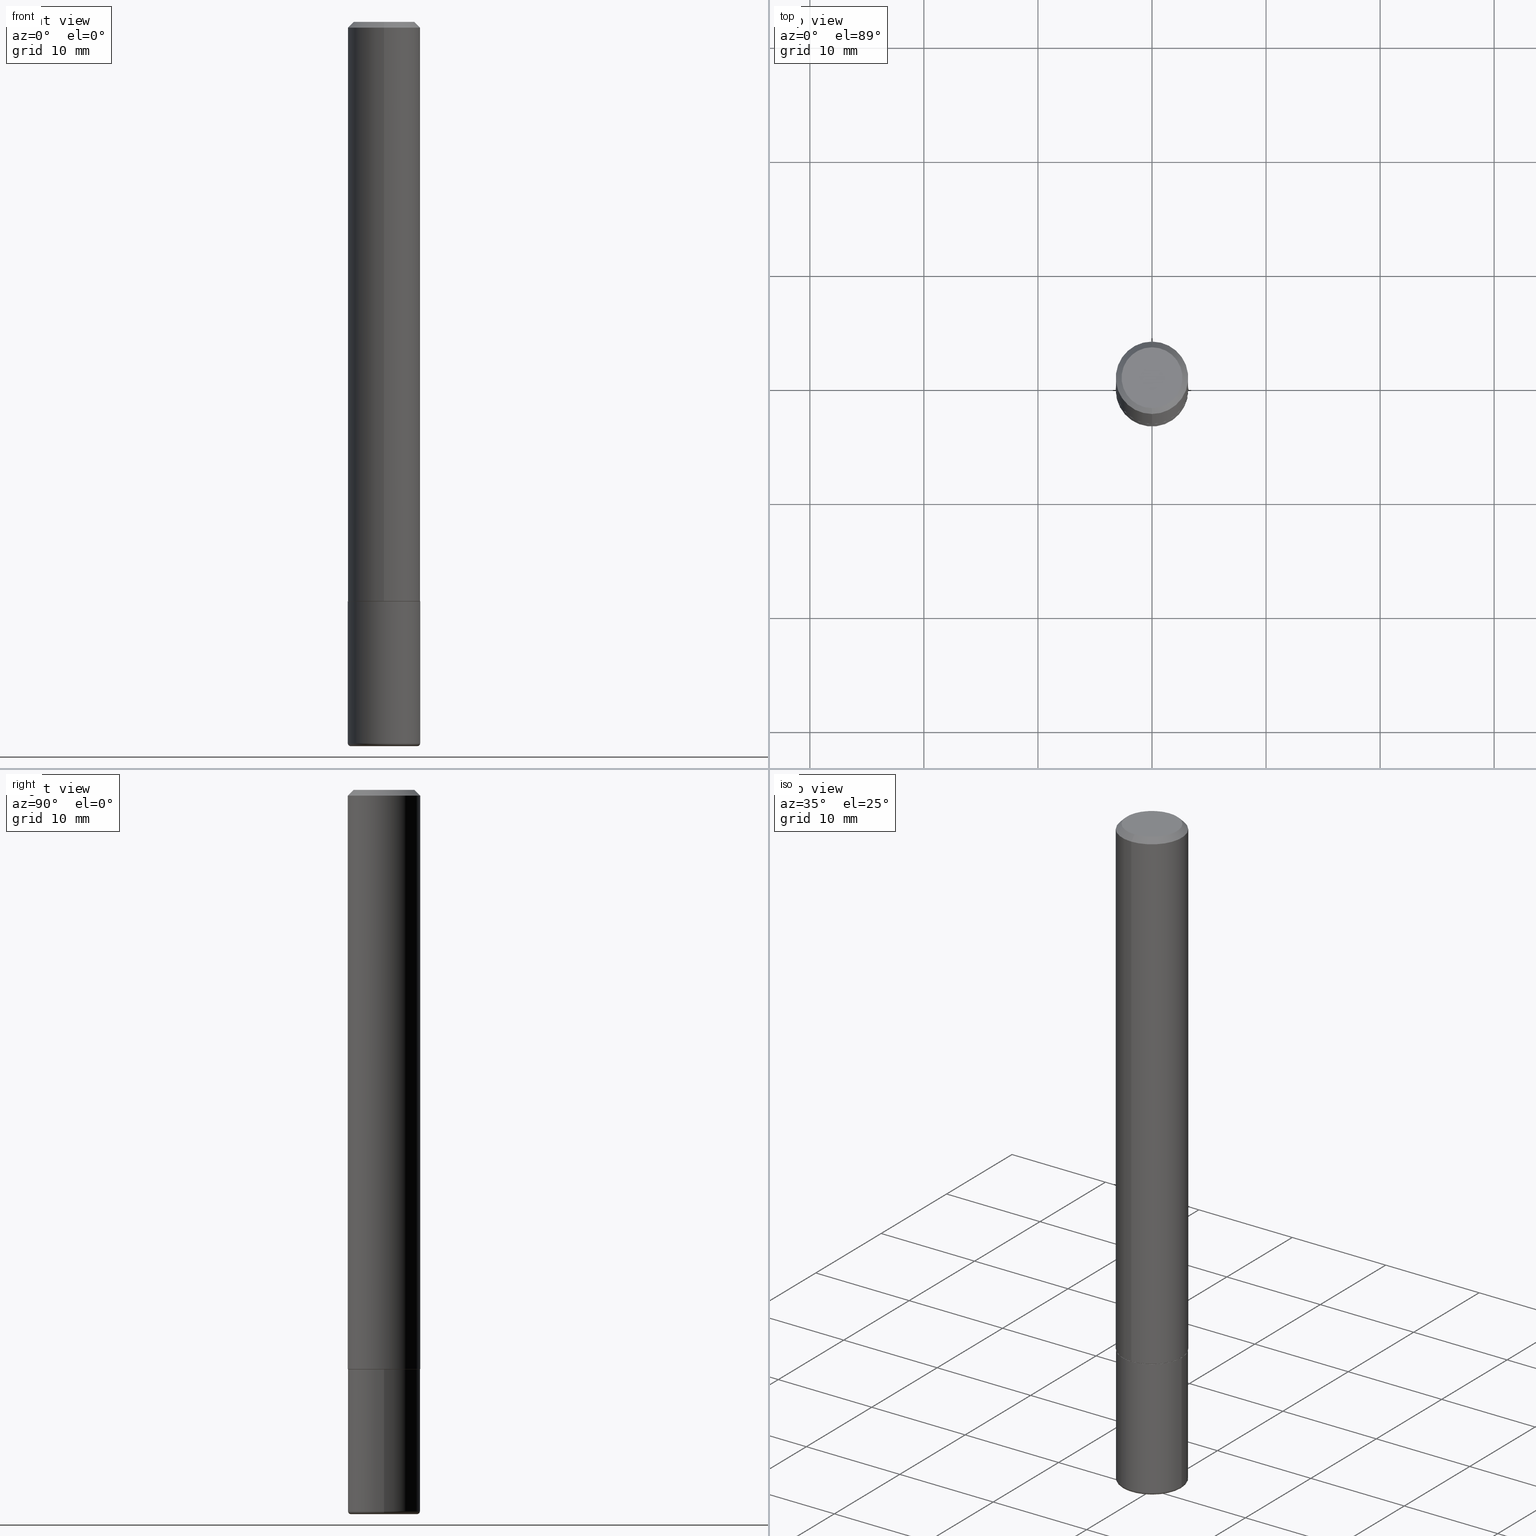
[diagram: canonical four-view strip — front | top / right | iso, engineering-drawing reading convention]
A machine part, canonical four-view strip (front | top / right | iso — engineering-drawing reading convention). The complete STEP part file that produces these views, byte-faithful:
ISO-10303-21;
HEADER;
FILE_DESCRIPTION (( 'STEP AP203' ),
    '1' );
FILE_NAME ('36372.STEP',
    '2024-03-01T16:12:04',
    ( '' ),
    ( '' ),
    'SwSTEP 2.0',
    'SolidWorks 2023',
    '' );
FILE_SCHEMA (( 'CONFIG_CONTROL_DESIGN' ));
ENDSEC;

DATA;
#1 = APPLICATION_PROTOCOL_DEFINITION ( 'international standard', 'config_control_design', 1994, #26 ) ;
#2 = CARTESIAN_POINT ( 'NONE',  ( -0.1250000000000000278, -7.805610114019306483E-15, -2.489999999999999769 ) ) ;
#3 = AXIS2_PLACEMENT_3D ( 'NONE', #227, #401, #109 ) ;
#4 = EDGE_CURVE ( 'NONE', #163, #397, #50, .T. ) ;
#5 = LINE ( 'NONE', #73, #66 ) ;
#6 = DIRECTION ( 'NONE',  ( -2.445468806185136597E-29, 3.491481338843145583E-15, 1.000000000000000000 ) ) ;
#7 = ORIENTED_EDGE ( 'NONE', *, *, #256, .F. ) ;
#8 = DIRECTION ( 'NONE',  ( -6.982962677686265922E-15, -1.000000000000000000, 4.406206441393973340E-15 ) ) ;
#9 = CONICAL_SURFACE ( 'NONE', #134, 0.1239999999999999991, 0.7853981633976704346 ) ;
#10 = CONICAL_SURFACE ( 'NONE', #273, 0.1250000000000000000, 0.7853981633974477239 ) ;
#11 = EDGE_LOOP ( 'NONE', ( #198, #360, #228, #103 ) ) ;
#12 = DIRECTION ( 'NONE',  ( -2.445362441100968354E-29, 3.491633659697599275E-15, 1.000000000000000000 ) ) ;
#13 = EDGE_LOOP ( 'NONE', ( #44, #108, #305, #403 ) ) ;
#14 = ADVANCED_FACE ( 'NONE', ( #331 ), #155, .T. ) ;
#15 = DIRECTION ( 'NONE',  ( -2.445362441100968354E-29, 3.491633659697599275E-15, 1.000000000000000000 ) ) ;
#16 = ORIENTED_EDGE ( 'NONE', *, *, #374, .T. ) ;
#17 = EDGE_LOOP ( 'NONE', ( #254, #263, #83, #165 ) ) ;
#18 = CIRCLE ( 'NONE', #303, 0.1239999999999999991 ) ;
#19 = ADVANCED_FACE ( 'NONE', ( #185 ), #22, .T. ) ;
#20 = CARTESIAN_POINT ( 'NONE',  ( -8.575622497214408537E-16, -0.1250000000000000555, -0.01999999999999959102 ) ) ;
#21 = CARTESIAN_POINT ( 'NONE',  ( 6.113672015462842613E-29, -8.728703347107864943E-15, -2.500000000000000000 ) ) ;
#22 = CYLINDRICAL_SURFACE ( 'NONE', #180, 0.1250000000000000000 ) ;
#23 = EDGE_CURVE ( 'NONE', #42, #232, #393, .T. ) ;
#24 = PERSON_AND_ORGANIZATION_ROLE ( 'classification_officer' ) ;
#25 = CIRCLE ( 'NONE', #233, 0.1050000000000000377 ) ;
#26 = APPLICATION_CONTEXT ( 'configuration controlled 3d designs of mechanical parts and assemblies' ) ;
#27 = CARTESIAN_POINT ( 'NONE',  ( 7.332110811570581229E-16, 0.1050000000000000377, -3.879560998738913242E-16 ) ) ;
#28 = CARTESIAN_POINT ( 'NONE',  ( 0.000000000000000000, 0.000000000000000000, 0.000000000000000000 ) ) ;
#29 = PLANE ( 'NONE',  #156 ) ;
#30 = CIRCLE ( 'NONE', #264, 0.1250000000000002498 ) ;
#31 = SECURITY_CLASSIFICATION ( '', '', #179 ) ;
#32 = EDGE_CURVE ( 'NONE', #33, #362, #373, .T. ) ;
#33 = VERTEX_POINT ( 'NONE', #407 ) ;
#34 = DIRECTION ( 'NONE',  ( 1.000000000000000000, -6.982962677686270655E-15, 0.000000000000000000 ) ) ;
#35 = EDGE_CURVE ( 'NONE', #33, #270, #30, .T. ) ;
#36 = DIRECTION ( 'NONE',  ( -6.982962677686266711E-15, -1.000000000000000000, 3.491481338843145583E-15 ) ) ;
#37 = AXIS2_PLACEMENT_3D ( 'NONE', #299, #167, #8 ) ;
#38 = ORIENTED_EDGE ( 'NONE', *, *, #332, .F. ) ;
#39 = CARTESIAN_POINT ( 'NONE',  ( 0.000000000000000000, 0.000000000000000000, 0.000000000000000000 ) ) ;
#40 = ORIENTED_EDGE ( 'NONE', *, *, #268, .F. ) ;
#41 = DIRECTION ( 'NONE',  ( 6.982962677686265922E-15, 1.000000000000000000, -3.483106191921935554E-15 ) ) ;
#42 = VERTEX_POINT ( 'NONE', #207 ) ;
#43 = DIRECTION ( 'NONE',  ( -2.445362441100968354E-29, 3.491633659697599275E-15, 1.000000000000000000 ) ) ;
#44 = ORIENTED_EDGE ( 'NONE', *, *, #351, .T. ) ;
#45 = CARTESIAN_POINT ( 'NONE',  ( 0.1150000000000000050, -9.496829241653351756E-15, -2.489999999999999769 ) ) ;
#46 = ORIENTED_EDGE ( 'NONE', *, *, #168, .T. ) ;
#47 = COORDINATED_UNIVERSAL_TIME_OFFSET ( 5, 0, .BEHIND. ) ;
#48 = ORIENTED_EDGE ( 'NONE', *, *, #398, .T. ) ;
#49 = PRODUCT_RELATED_PRODUCT_CATEGORY ( 'detail', '', ( #80 ) ) ;
#50 = CIRCLE ( 'NONE', #388, 0.1250000000000000000 ) ;
#51 = CARTESIAN_POINT ( 'NONE',  ( 4.890937612370273194E-29, -6.982962677686291165E-15, -2.000000000000000000 ) ) ;
#52 = VECTOR ( 'NONE', #298, 39.37007874015748854 ) ;
#53 = DIRECTION ( 'NONE',  ( -2.445362441100968354E-29, 3.491633659697599275E-15, 1.000000000000000000 ) ) ;
#54 = EDGE_CURVE ( 'NONE', #201, #397, #145, .T. ) ;
#55 = CARTESIAN_POINT ( 'NONE',  ( -0.1250000000000000000, 8.881784197001252323E-16, -6.148668862818632227E-30 ) ) ;
#56 = CALENDAR_DATE ( 2024, 1, 3 ) ;
#57 = DIRECTION ( 'NONE',  ( -6.982962677686266711E-15, -1.000000000000000000, 3.491633659697599669E-15 ) ) ;
#58 = CLOSED_SHELL ( 'NONE', ( #97, #314, #287, #380, #141, #405, #340, #161 ) ) ;
#59 = AXIS2_PLACEMENT_3D ( 'NONE', #361, #304, #72 ) ;
#60 = FACE_OUTER_BOUND ( 'NONE', #82, .T. ) ;
#61 = APPROVAL_ROLE ( '' ) ;
#62 = DIRECTION ( 'NONE',  ( 1.000000000000000000, -6.982962677686266711E-15, 4.883557194083113462E-29 ) ) ;
#63 = CALENDAR_DATE ( 2024, 1, 3 ) ;
#64 = EDGE_LOOP ( 'NONE', ( #234, #190, #111, #370 ) ) ;
#65 = VECTOR ( 'NONE', #124, 39.37007874015748143 ) ;
#66 = VECTOR ( 'NONE', #402, 39.37007874015748143 ) ;
#67 = DIRECTION ( 'NONE',  ( -2.445362441100968354E-29, 3.491633659697599275E-15, 1.000000000000000000 ) ) ;
#68 = DIRECTION ( 'NONE',  ( 4.937700262164544887E-15, 0.7071067811865446862, -0.7071067811865503483 ) ) ;
#69 = FACE_OUTER_BOUND ( 'NONE', #13, .T. ) ;
#70 = CARTESIAN_POINT ( 'NONE',  ( 4.890724882201936708E-29, -6.983267319395198550E-15, -2.000000000000000000 ) ) ;
#71 = CIRCLE ( 'NONE', #3, 0.1249999999999999861 ) ;
#72 = DIRECTION ( 'NONE',  ( -6.982962677686265133E-15, -1.000000000000000000, 3.491633659697599669E-15 ) ) ;
#73 = CARTESIAN_POINT ( 'NONE',  ( -8.575622497214408537E-16, -0.1250000000000000555, -0.01999999999999959102 ) ) ;
#74 = ORIENTED_EDGE ( 'NONE', *, *, #240, .T. ) ;
#75 = CARTESIAN_POINT ( 'NONE',  ( 6.113672015462842613E-29, -8.728703347107864943E-15, -2.500000000000000000 ) ) ;
#76 = ORIENTED_EDGE ( 'NONE', *, *, #351, .F. ) ;
#77 = CIRCLE ( 'NONE', #317, 0.01000000000000006439 ) ;
#78 = LOCAL_TIME ( 11, 12, 4.000000000000000000, #154 ) ;
#79 = EDGE_LOOP ( 'NONE', ( #74, #337, #169, #40 ) ) ;
#80 = PRODUCT ( '36372', '36372', '', ( #286 ) ) ;
#81 = EDGE_CURVE ( 'NONE', #226, #270, #239, .T. ) ;
#82 = EDGE_LOOP ( 'NONE', ( #160, #301 ) ) ;
#83 = ORIENTED_EDGE ( 'NONE', *, *, #81, .T. ) ;
#84 = FACE_OUTER_BOUND ( 'NONE', #64, .T. ) ;
#85 = APPROVAL_PERSON_ORGANIZATION ( #120, #123, #354 ) ;
#86 = DIRECTION ( 'NONE',  ( -2.445468806185136597E-29, 3.491481338843145583E-15, 1.000000000000000000 ) ) ;
#87 = APPROVAL_DATE_TIME ( #242, #176 ) ;
#88 = DIRECTION ( 'NONE',  ( 1.000000000000000000, -6.982962677686271444E-15, 0.000000000000000000 ) ) ;
#89 = COORDINATED_UNIVERSAL_TIME_OFFSET ( 5, 0, .BEHIND. ) ;
#90 = DIRECTION ( 'NONE',  ( -2.445468806185136877E-29, 3.491481338843145188E-15, 1.000000000000000000 ) ) ;
#91 = PERSON_AND_ORGANIZATION ( #372, #265 ) ;
#92 = LOCAL_TIME ( 11, 12, 4.000000000000000000, #47 ) ;
#93 = PERSON_AND_ORGANIZATION ( #372, #265 ) ;
#94 = ORIENTED_EDGE ( 'NONE', *, *, #152, .F. ) ;
#95 = DATE_AND_TIME ( #63, #166 ) ;
#96 = CARTESIAN_POINT ( 'NONE',  ( 1.043414908584889994E-45, -1.489849747673812213E-31, -4.266913121128647336E-17 ) ) ;
#97 = ADVANCED_FACE ( 'NONE', ( #178 ), #9, .T. ) ;
#98 = DIRECTION ( 'NONE',  ( -2.445362441100968354E-29, 3.491633659697599275E-15, 1.000000000000000000 ) ) ;
#99 = VERTEX_POINT ( 'NONE', #410 ) ;
#100 = FACE_OUTER_BOUND ( 'NONE', #79, .T. ) ;
#101 = DIRECTION ( 'NONE',  ( 2.445362441100968354E-29, -3.491633659697599275E-15, -1.000000000000000000 ) ) ;
#102 = AXIS2_PLACEMENT_3D ( 'NONE', #260, #353, #62 ) ;
#103 = ORIENTED_EDGE ( 'NONE', *, *, #366, .F. ) ;
#104 = CC_DESIGN_PERSON_AND_ORGANIZATION_ASSIGNMENT ( #382, #352, ( #148 ) ) ;
#105 = DIRECTION ( 'NONE',  ( 1.000000000000000000, -6.982962677686287221E-15, 0.000000000000000000 ) ) ;
#106 = VERTEX_POINT ( 'NONE', #20 ) ;
#107 = CARTESIAN_POINT ( 'NONE',  ( 6.113672015462842613E-29, -8.728703347107864943E-15, -2.500000000000000000 ) ) ;
#108 = ORIENTED_EDGE ( 'NONE', *, *, #152, .T. ) ;
#109 = DIRECTION ( 'NONE',  ( 1.000000000000000000, -6.982962677686271444E-15, 0.000000000000000000 ) ) ;
#110 = CC_DESIGN_PERSON_AND_ORGANIZATION_ASSIGNMENT ( #93, #214, ( #148 ) ) ;
#111 = ORIENTED_EDGE ( 'NONE', *, *, #4, .F. ) ;
#112 = DIRECTION ( 'NONE',  ( -2.445468806185136597E-29, 3.491481338843145583E-15, 1.000000000000000000 ) ) ;
#113 = CARTESIAN_POINT ( 'NONE',  ( 0.000000000000000000, 0.000000000000000000, 0.000000000000000000 ) ) ;
#114 = CC_DESIGN_APPROVAL ( #391, ( #148 ) ) ;
#115 = CARTESIAN_POINT ( 'NONE',  ( 4.888279519760836279E-29, -6.979775685735500754E-15, -1.999000000000000110 ) ) ;
#116 = CIRCLE ( 'NONE', #59, 0.1050000000000000377 ) ;
#117 = ADVANCED_FACE ( 'NONE', ( #84 ), #276, .T. ) ;
#118 = APPROVAL_ROLE ( '' ) ;
#119 = DIRECTION ( 'NONE',  ( -2.445468806185136597E-29, 3.491481338843145583E-15, 1.000000000000000000 ) ) ;
#120 = PERSON_AND_ORGANIZATION ( #372, #265 ) ;
#121 = DIRECTION ( 'NONE',  ( -6.982962677686265133E-15, -1.000000000000000000, 4.370956789862812472E-15 ) ) ;
#122 = APPROVAL_DATE_TIME ( #411, #391 ) ;
#123 = APPROVAL ( #251, 'UNSPECIFIED' ) ;
#124 = DIRECTION ( 'NONE',  ( -2.445468806185136877E-29, 3.491481338843145188E-15, 1.000000000000000000 ) ) ;
#125 = CLOSED_SHELL ( 'NONE', ( #117, #249, #192, #19, #14, #412 ) ) ;
#126 =( GEOMETRIC_REPRESENTATION_CONTEXT ( 3 ) GLOBAL_UNCERTAINTY_ASSIGNED_CONTEXT ( ( #257 ) ) GLOBAL_UNIT_ASSIGNED_CONTEXT ( ( #170, #369, #320 ) ) REPRESENTATION_CONTEXT ( 'NONE', 'WORKASPACE' ) );
#127 = PERSON_AND_ORGANIZATION_ROLE ( 'creator' ) ;
#128 = CARTESIAN_POINT ( 'NONE',  ( 8.728703347107837333E-16, 0.1249999999999999306, -0.02000000000000046185 ) ) ;
#129 = AXIS2_PLACEMENT_3D ( 'NONE', #381, #406, #206 ) ;
#130 = VECTOR ( 'NONE', #68, 39.37007874015748143 ) ;
#131 = DIRECTION ( 'NONE',  ( -6.982962677686265922E-15, -1.000000000000000000, 3.483106191921935554E-15 ) ) ;
#132 = EDGE_CURVE ( 'NONE', #106, #362, #375, .T. ) ;
#133 = ORIENTED_EDGE ( 'NONE', *, *, #220, .T. ) ;
#134 = AXIS2_PLACEMENT_3D ( 'NONE', #350, #53, #315 ) ;
#135 = LINE ( 'NONE', #365, #52 ) ;
#136 = AXIS2_PLACEMENT_3D ( 'NONE', #75, #6, #330 ) ;
#137 = ORIENTED_EDGE ( 'NONE', *, *, #23, .T. ) ;
#138 = APPLICATION_CONTEXT ( 'configuration controlled 3d designs of mechanical parts and assemblies' ) ;
#139 = PLANE ( 'NONE',  #389 ) ;
#140 = ORIENTED_EDGE ( 'NONE', *, *, #230, .F. ) ;
#141 = ADVANCED_FACE ( 'NONE', ( #345 ), #153, .T. ) ;
#142 = EDGE_LOOP ( 'NONE', ( #395, #216, #46, #140 ) ) ;
#143 = CC_DESIGN_APPROVAL ( #123, ( #31 ) ) ;
#144 = EDGE_LOOP ( 'NONE', ( #328, #223, #371, #310 ) ) ;
#145 = LINE ( 'NONE', #55, #65 ) ;
#146 = EDGE_CURVE ( 'NONE', #400, #201, #336, .T. ) ;
#147 = DIRECTION ( 'NONE',  ( 1.000000000000000000, -6.982962677686266711E-15, 4.876176775795935793E-29 ) ) ;
#148 = PRODUCT_DEFINITION_FORMATION_WITH_SPECIFIED_SOURCE ( 'ANY', '', #80, .NOT_KNOWN. ) ;
#149 = DIRECTION ( 'NONE',  ( -2.445468806185136597E-29, 3.491481338843145583E-15, 1.000000000000000000 ) ) ;
#150 = DIRECTION ( 'NONE',  ( -2.445468806185136597E-29, 3.491481338843145583E-15, 1.000000000000000000 ) ) ;
#151 = PERSON_AND_ORGANIZATION ( #372, #265 ) ;
#152 = EDGE_CURVE ( 'NONE', #42, #201, #77, .T. ) ;
#153 = CYLINDRICAL_SURFACE ( 'NONE', #199, 0.1250000000000001110 ) ;
#154 = COORDINATED_UNIVERSAL_TIME_OFFSET ( 5, 0, .BEHIND. ) ;
#155 = TOROIDAL_SURFACE ( 'NONE', #278, 0.1150000000000000050, 0.01000000000000007307 ) ;
#156 = AXIS2_PLACEMENT_3D ( 'NONE', #51, #175, #355 ) ;
#157 = DIRECTION ( 'NONE',  ( -2.445362441100968354E-29, 3.491633659697599275E-15, 1.000000000000000000 ) ) ;
#158 = CONICAL_SURFACE ( 'NONE', #37, 0.1239999999999999991, 0.7853981633976704346 ) ;
#159 = CARTESIAN_POINT ( 'NONE',  ( 4.890724882201942593E-31, -6.983267319395208066E-17, -0.02000000000000002470 ) ) ;
#160 = ORIENTED_EDGE ( 'NONE', *, *, #4, .T. ) ;
#161 = ADVANCED_FACE ( 'NONE', ( #321 ), #319, .F. ) ;
#162 = FACE_OUTER_BOUND ( 'NONE', #144, .T. ) ;
#163 = VERTEX_POINT ( 'NONE', #204 ) ;
#164 = DIRECTION ( 'NONE',  ( -2.445362441100968074E-29, 3.491633659697598881E-15, 1.000000000000000000 ) ) ;
#165 = ORIENTED_EDGE ( 'NONE', *, *, #35, .F. ) ;
#166 = LOCAL_TIME ( 11, 12, 4.000000000000000000, #379 ) ;
#167 = DIRECTION ( 'NONE',  ( -2.445362441100968354E-29, 3.491633659697599275E-15, 1.000000000000000000 ) ) ;
#168 = EDGE_CURVE ( 'NONE', #400, #163, #343, .T. ) ;
#169 = ORIENTED_EDGE ( 'NONE', *, *, #132, .F. ) ;
#170 =( CONVERSION_BASED_UNIT ( 'INCH', #339 ) LENGTH_UNIT ( ) NAMED_UNIT ( #415 ) );
#171 = VERTEX_POINT ( 'NONE', #213 ) ;
#172 = PERSON_AND_ORGANIZATION ( #372, #265 ) ;
#173 = EDGE_LOOP ( 'NONE', ( #367, #48 ) ) ;
#174 = CONICAL_SURFACE ( 'NONE', #205, 0.1250000000000000000, 0.7853981633974477239 ) ;
#175 = DIRECTION ( 'NONE',  ( 2.438088387897960049E-29, -3.491481338843145188E-15, -1.000000000000000000 ) ) ;
#176 = APPROVAL ( #347, 'UNSPECIFIED' ) ;
#177 = DIRECTION ( 'NONE',  ( -2.445362441100968354E-29, 3.491633659697599275E-15, 1.000000000000000000 ) ) ;
#178 = FACE_OUTER_BOUND ( 'NONE', #404, .T. ) ;
#179 = SECURITY_CLASSIFICATION_LEVEL ( 'unclassified' ) ;
#180 = AXIS2_PLACEMENT_3D ( 'NONE', #416, #149, #147 ) ;
#181 = AXIS2_PLACEMENT_3D ( 'NONE', #70, #164, #222 ) ;
#182 = DIRECTION ( 'NONE',  ( -1.000000000000000000, 7.105427357600977404E-15, 0.000000000000000000 ) ) ;
#183 = CC_DESIGN_PERSON_AND_ORGANIZATION_ASSIGNMENT ( #211, #127, ( #193 ) ) ;
#184 = APPROVAL_STATUS ( 'not_yet_approved' ) ;
#185 = FACE_OUTER_BOUND ( 'NONE', #142, .T. ) ;
#186 = DIRECTION ( 'NONE',  ( 0.000000000000000000, 0.000000000000000000, 1.000000000000000000 ) ) ;
#187 = DIRECTION ( 'NONE',  ( -6.982962677686265922E-15, -1.000000000000000000, 4.406206441393973340E-15 ) ) ;
#188 = APPROVAL_DATE_TIME ( #95, #123 ) ;
#189 = AXIS2_PLACEMENT_3D ( 'NONE', #113, #119, #384 ) ;
#190 = ORIENTED_EDGE ( 'NONE', *, *, #54, .T. ) ;
#191 = CIRCLE ( 'NONE', #279, 0.01000000000000006439 ) ;
#192 = ADVANCED_FACE ( 'NONE', ( #60 ), #29, .F. ) ;
#193 = PRODUCT_DEFINITION ( 'UNKNOWN', '', #148, #306 ) ;
#194 = DIRECTION ( 'NONE',  ( 6.982962677686265922E-15, 1.000000000000000000, -3.483106191921935554E-15 ) ) ;
#195 = CARTESIAN_POINT ( 'NONE',  ( 8.728703347107837333E-16, 0.1249999999999999306, -0.02000000000000046185 ) ) ;
#196 = ORIENTED_EDGE ( 'NONE', *, *, #235, .F. ) ;
#197 = CARTESIAN_POINT ( 'NONE',  ( 4.890724882201942593E-31, -6.983267319395208066E-17, -0.02000000000000002470 ) ) ;
#198 = ORIENTED_EDGE ( 'NONE', *, *, #32, .F. ) ;
#199 = AXIS2_PLACEMENT_3D ( 'NONE', #246, #177, #57 ) ;
#200 = LOCAL_TIME ( 11, 12, 4.000000000000000000, #244 ) ;
#201 = VERTEX_POINT ( 'NONE', #2 ) ;
#202 = DIRECTION ( 'NONE',  ( 2.438088387897960049E-29, -3.491481338843145188E-15, -1.000000000000000000 ) ) ;
#203 = ORIENTED_EDGE ( 'NONE', *, *, #366, .T. ) ;
#204 = CARTESIAN_POINT ( 'NONE',  ( 0.1250000000000000000, -7.855833012397075293E-15, -2.000000000000000000 ) ) ;
#205 = AXIS2_PLACEMENT_3D ( 'NONE', #359, #101, #194 ) ;
#206 = DIRECTION ( 'NONE',  ( -6.982962677686265922E-15, -1.000000000000000000, 3.483106191921935554E-15 ) ) ;
#207 = CARTESIAN_POINT ( 'NONE',  ( -0.1150000000000000050, -7.858594657501527349E-15, -2.500000000000000000 ) ) ;
#208 = CALENDAR_DATE ( 2024, 1, 3 ) ;
#209 = CC_DESIGN_PERSON_AND_ORGANIZATION_ASSIGNMENT ( #385, #414, ( #80 ) ) ;
#210 = CARTESIAN_POINT ( 'NONE',  ( -0.1150000000000000050, -7.876664387595316565E-15, -2.489999999999999769 ) ) ;
#211 = PERSON_AND_ORGANIZATION ( #372, #265 ) ;
#212 = CC_DESIGN_APPROVAL ( #176, ( #193 ) ) ;
#213 = CARTESIAN_POINT ( 'NONE',  ( 8.030407079339210267E-16, 0.1050000000000000377, -4.092906654795345116E-16 ) ) ;
#214 = PERSON_AND_ORGANIZATION_ROLE ( 'creator' ) ;
#215 = DATE_AND_TIME ( #322, #92 ) ;
#216 = ORIENTED_EDGE ( 'NONE', *, *, #332, .T. ) ;
#217 = CC_DESIGN_DATE_AND_TIME_ASSIGNMENT ( #215, #281, ( #31 ) ) ;
#218 = VECTOR ( 'NONE', #312, 39.37007874015748143 ) ;
#219 = AXIS2_PLACEMENT_3D ( 'NONE', #294, #98, #358 ) ;
#220 = EDGE_CURVE ( 'NONE', #171, #362, #290, .T. ) ;
#221 = EDGE_LOOP ( 'NONE', ( #272, #196 ) ) ;
#222 = DIRECTION ( 'NONE',  ( -6.982962677686265922E-15, -1.000000000000000000, 3.491633659697598881E-15 ) ) ;
#223 = ORIENTED_EDGE ( 'NONE', *, *, #256, .T. ) ;
#224 = VECTOR ( 'NONE', #90, 39.37007874015748143 ) ;
#225 = DIRECTION ( 'NONE',  ( 2.445362441100968354E-29, -3.491633659697599275E-15, -1.000000000000000000 ) ) ;
#226 = VERTEX_POINT ( 'NONE', #253 ) ;
#227 = CARTESIAN_POINT ( 'NONE',  ( 6.089217327400989947E-29, -8.693788533719431716E-15, -2.489999999999999769 ) ) ;
#228 = ORIENTED_EDGE ( 'NONE', *, *, #268, .T. ) ;
#229 = PRODUCT_DEFINITION_SHAPE ( 'NONE', 'NONE',  #193 ) ;
#230 = EDGE_CURVE ( 'NONE', #397, #163, #325, .T. ) ;
#231 = DIRECTION ( 'NONE',  ( -1.000000000000000000, 6.982962677686265922E-15, -4.876176775795935793E-29 ) ) ;
#232 = VERTEX_POINT ( 'NONE', #357 ) ;
#233 = AXIS2_PLACEMENT_3D ( 'NONE', #96, #67, #262 ) ;
#234 = ORIENTED_EDGE ( 'NONE', *, *, #146, .T. ) ;
#235 = EDGE_CURVE ( 'NONE', #334, #226, #245, .T. ) ;
#236 = DIRECTION ( 'NONE',  ( 1.000000000000000000, -6.982962677686270655E-15, 0.000000000000000000 ) ) ;
#237 = DIRECTION ( 'NONE',  ( -2.445468806185136597E-29, 3.491481338843145583E-15, 1.000000000000000000 ) ) ;
#238 = AXIS2_PLACEMENT_3D ( 'NONE', #327, #157, #187 ) ;
#239 = LINE ( 'NONE', #243, #218 ) ;
#240 = EDGE_CURVE ( 'NONE', #270, #33, #311, .T. ) ;
#241 = CARTESIAN_POINT ( 'NONE',  ( 6.089217327400989947E-29, -8.693788533719431716E-15, -2.489999999999999769 ) ) ;
#242 = DATE_AND_TIME ( #208, #338 ) ;
#243 = CARTESIAN_POINT ( 'NONE',  ( -8.658873720330480207E-16, -0.1240000000000069796, -1.999999999999999334 ) ) ;
#244 = COORDINATED_UNIVERSAL_TIME_OFFSET ( 5, 0, .BEHIND. ) ;
#245 = CIRCLE ( 'NONE', #238, 0.1239999999999999991 ) ;
#246 = CARTESIAN_POINT ( 'NONE',  ( 0.000000000000000000, 0.000000000000000000, 0.000000000000000000 ) ) ;
#247 = APPLICATION_PROTOCOL_DEFINITION ( 'international standard', 'config_control_design', 1994, #138 ) ;
#248 = LINE ( 'NONE', #284, #318 ) ;
#249 = ADVANCED_FACE ( 'NONE', ( #69 ), #368, .T. ) ;
#250 = ORIENTED_EDGE ( 'NONE', *, *, #274, .F. ) ;
#251 = APPROVAL_STATUS ( 'not_yet_approved' ) ;
#252 = DIRECTION ( 'NONE',  ( -2.445362441100968354E-29, 3.491633659697598881E-15, 1.000000000000000000 ) ) ;
#253 = CARTESIAN_POINT ( 'NONE',  ( -8.658873720330480207E-16, -0.1240000000000069796, -1.999999999999999334 ) ) ;
#254 = ORIENTED_EDGE ( 'NONE', *, *, #323, .F. ) ;
#255 = AXIS2_PLACEMENT_3D ( 'NONE', #378, #150, #88 ) ;
#256 = EDGE_CURVE ( 'NONE', #99, #106, #5, .T. ) ;
#257 = UNCERTAINTY_MEASURE_WITH_UNIT (LENGTH_MEASURE( 1.000000000000000082E-05 ), #170, 'distance_accuracy_value', 'NONE');
#258 = DIRECTION ( 'NONE',  ( -2.445468806185136597E-29, 3.491481338843145583E-15, 1.000000000000000000 ) ) ;
#259 = CARTESIAN_POINT ( 'NONE',  ( -0.1250000000000000000, -6.950197186002735814E-15, -2.000000000000000000 ) ) ;
#260 = CARTESIAN_POINT ( 'NONE',  ( 6.089217327400989947E-29, -8.693788533719431716E-15, -2.489999999999999769 ) ) ;
#261 = ORIENTED_EDGE ( 'NONE', *, *, #240, .F. ) ;
#262 = DIRECTION ( 'NONE',  ( -6.982962677686265133E-15, -1.000000000000000000, 3.491633659697599669E-15 ) ) ;
#263 = ORIENTED_EDGE ( 'NONE', *, *, #235, .T. ) ;
#264 = AXIS2_PLACEMENT_3D ( 'NONE', #115, #377, #121 ) ;
#265 = ORGANIZATION ( 'UNSPECIFIED', 'UNSPECIFIED', '' ) ;
#266 = CARTESIAN_POINT ( 'NONE',  ( 0.1250000000000000278, -9.566658868430215055E-15, -2.489999999999999769 ) ) ;
#267 = ORIENTED_EDGE ( 'NONE', *, *, #23, .F. ) ;
#268 = EDGE_CURVE ( 'NONE', #270, #106, #248, .T. ) ;
#269 = FACE_OUTER_BOUND ( 'NONE', #341, .T. ) ;
#270 = VERTEX_POINT ( 'NONE', #387 ) ;
#271 = FACE_OUTER_BOUND ( 'NONE', #221, .T. ) ;
#272 = ORIENTED_EDGE ( 'NONE', *, *, #374, .F. ) ;
#273 = AXIS2_PLACEMENT_3D ( 'NONE', #197, #225, #41 ) ;
#274 = EDGE_CURVE ( 'NONE', #171, #99, #25, .T. ) ;
#275 = CARTESIAN_POINT ( 'NONE',  ( 4.890937612370273194E-29, -6.982962677686291165E-15, -2.000000000000000000 ) ) ;
#276 = CYLINDRICAL_SURFACE ( 'NONE', #189, 0.1250000000000000000 ) ;
#277 = DIRECTION ( 'NONE',  ( 1.000000000000000000, -6.982962677686265133E-15, 0.000000000000000000 ) ) ;
#278 = AXIS2_PLACEMENT_3D ( 'NONE', #241, #237, #285 ) ;
#279 = AXIS2_PLACEMENT_3D ( 'NONE', #45, #36, #105 ) ;
#280 = CARTESIAN_POINT ( 'NONE',  ( 8.881784197001260212E-16, 0.1250000000000001110, -4.364542074622003531E-16 ) ) ;
#281 = DATE_TIME_ROLE ( 'classification_date' ) ;
#282 = DIRECTION ( 'NONE',  ( 2.445362441100968074E-29, -3.491633659697598881E-15, -1.000000000000000000 ) ) ;
#283 = DATE_TIME_ROLE ( 'creation_date' ) ;
#284 = CARTESIAN_POINT ( 'NONE',  ( -8.728703347107841277E-16, -0.1250000000000001110, 4.364542074622003531E-16 ) ) ;
#285 = DIRECTION ( 'NONE',  ( 1.000000000000000000, -6.982962677686266711E-15, 4.883557194083113462E-29 ) ) ;
#286 = MECHANICAL_CONTEXT ( 'NONE', #138, 'mechanical' ) ;
#287 = ADVANCED_FACE ( 'NONE', ( #162 ), #174, .T. ) ;
#288 = APPROVAL_PERSON_ORGANIZATION ( #91, #176, #61 ) ;
#289 = MANIFOLD_SOLID_BREP ( 'Body-Move/Copy2[2]', #58 ) ;
#290 = LINE ( 'NONE', #128, #130 ) ;
#291 = EDGE_CURVE ( 'NONE', #232, #400, #191, .T. ) ;
#292 = ADVANCED_BREP_SHAPE_REPRESENTATION ( '36372', ( #293, #289, #418 ), #126 ) ;
#293 = MANIFOLD_SOLID_BREP ( 'Body-Move/Copy2[1]', #125 ) ;
#294 = CARTESIAN_POINT ( 'NONE',  ( 4.888279519760836279E-29, -6.979775685735500754E-15, -1.999000000000000110 ) ) ;
#295 = AXIS2_PLACEMENT_3D ( 'NONE', #27, #282, #313 ) ;
#296 = CIRCLE ( 'NONE', #136, 0.1150000000000000050 ) ;
#297 =( LENGTH_UNIT ( ) NAMED_UNIT ( * ) SI_UNIT ( $, .METRE. ) );
#298 = DIRECTION ( 'NONE',  ( 5.024295867789177050E-15, 0.7071067811867068897, 0.7071067811863879227 ) ) ;
#299 = CARTESIAN_POINT ( 'NONE',  ( 4.890724882201936708E-29, -6.983267319395198550E-15, -2.000000000000000000 ) ) ;
#300 = CC_DESIGN_DATE_AND_TIME_ASSIGNMENT ( #316, #283, ( #193 ) ) ;
#301 = ORIENTED_EDGE ( 'NONE', *, *, #230, .T. ) ;
#302 = VECTOR ( 'NONE', #346, 39.37007874015748143 ) ;
#303 = AXIS2_PLACEMENT_3D ( 'NONE', #307, #15, #392 ) ;
#304 = DIRECTION ( 'NONE',  ( -2.445362441100968354E-29, 3.491633659697599275E-15, 1.000000000000000000 ) ) ;
#305 = ORIENTED_EDGE ( 'NONE', *, *, #146, .F. ) ;
#306 = DESIGN_CONTEXT ( 'detailed design', #26, 'design' ) ;
#307 = CARTESIAN_POINT ( 'NONE',  ( 4.890724882201936708E-29, -6.983267319395198550E-15, -2.000000000000000000 ) ) ;
#308 = EDGE_LOOP ( 'NONE', ( #7, #250, #133, #203 ) ) ;
#309 = CC_DESIGN_PERSON_AND_ORGANIZATION_ASSIGNMENT ( #172, #24, ( #31 ) ) ;
#310 = ORIENTED_EDGE ( 'NONE', *, *, #220, .F. ) ;
#311 = CIRCLE ( 'NONE', #219, 0.1250000000000002498 ) ;
#312 = DIRECTION ( 'NONE',  ( -4.937700262165644559E-15, -0.7071067811867021158, 0.7071067811863929187 ) ) ;
#313 = DIRECTION ( 'NONE',  ( 6.982962677686265922E-15, 1.000000000000000000, -3.491633659697598881E-15 ) ) ;
#314 = ADVANCED_FACE ( 'NONE', ( #100 ), #335, .T. ) ;
#315 = DIRECTION ( 'NONE',  ( -6.982962677686265922E-15, -1.000000000000000000, 4.406206441393973340E-15 ) ) ;
#316 = DATE_AND_TIME ( #349, #200 ) ;
#317 = AXIS2_PLACEMENT_3D ( 'NONE', #210, #348, #182 ) ;
#318 = VECTOR ( 'NONE', #252, 39.37007874015748143 ) ;
#319 = PLANE ( 'NONE',  #295 ) ;
#320 =( NAMED_UNIT ( * ) SI_UNIT ( $, .STERADIAN. ) SOLID_ANGLE_UNIT ( ) );
#321 = FACE_OUTER_BOUND ( 'NONE', #173, .T. ) ;
#322 = CALENDAR_DATE ( 2024, 1, 3 ) ;
#323 = EDGE_CURVE ( 'NONE', #334, #33, #135, .T. ) ;
#324 = SHAPE_DEFINITION_REPRESENTATION ( #229, #292 ) ;
#325 = CIRCLE ( 'NONE', #344, 0.1250000000000000000 ) ;
#326 = CARTESIAN_POINT ( 'NONE',  ( 4.890937612370273194E-29, -6.982962677686291165E-15, -2.000000000000000000 ) ) ;
#327 = CARTESIAN_POINT ( 'NONE',  ( 4.890724882201936708E-29, -6.983267319395198550E-15, -2.000000000000000000 ) ) ;
#328 = ORIENTED_EDGE ( 'NONE', *, *, #398, .F. ) ;
#329 = EDGE_LOOP ( 'NONE', ( #94, #137, #364, #38 ) ) ;
#330 = DIRECTION ( 'NONE',  ( 1.000000000000000000, -6.982962677686265133E-15, 0.000000000000000000 ) ) ;
#331 = FACE_OUTER_BOUND ( 'NONE', #329, .T. ) ;
#332 = EDGE_CURVE ( 'NONE', #201, #400, #71, .T. ) ;
#333 = FACE_OUTER_BOUND ( 'NONE', #308, .T. ) ;
#334 = VERTEX_POINT ( 'NONE', #390 ) ;
#335 = CYLINDRICAL_SURFACE ( 'NONE', #356, 0.1250000000000001110 ) ;
#336 = CIRCLE ( 'NONE', #255, 0.1249999999999999861 ) ;
#337 = ORIENTED_EDGE ( 'NONE', *, *, #32, .T. ) ;
#338 = LOCAL_TIME ( 11, 12, 4.000000000000000000, #89 ) ;
#339 = LENGTH_MEASURE_WITH_UNIT ( LENGTH_MEASURE( 0.02539999999999999897 ), #297 );
#340 = ADVANCED_FACE ( 'NONE', ( #271 ), #363, .F. ) ;
#341 = EDGE_LOOP ( 'NONE', ( #76, #267 ) ) ;
#342 = ORIENTED_EDGE ( 'NONE', *, *, #323, .T. ) ;
#343 = LINE ( 'NONE', #413, #224 ) ;
#344 = AXIS2_PLACEMENT_3D ( 'NONE', #326, #258, #34 ) ;
#345 = FACE_OUTER_BOUND ( 'NONE', #11, .T. ) ;
#346 = DIRECTION ( 'NONE',  ( -2.445362441100968354E-29, 3.491633659697598881E-15, 1.000000000000000000 ) ) ;
#347 = APPROVAL_STATUS ( 'not_yet_approved' ) ;
#348 = DIRECTION ( 'NONE',  ( 7.105427357601001859E-15, 1.000000000000000000, -3.491481338843145583E-15 ) ) ;
#349 = CALENDAR_DATE ( 2024, 1, 3 ) ;
#350 = CARTESIAN_POINT ( 'NONE',  ( 4.890724882201936708E-29, -6.983267319395198550E-15, -2.000000000000000000 ) ) ;
#351 = EDGE_CURVE ( 'NONE', #232, #42, #296, .T. ) ;
#352 = PERSON_AND_ORGANIZATION_ROLE ( 'design_supplier' ) ;
#353 = DIRECTION ( 'NONE',  ( -2.445468806185136597E-29, 3.491481338843145583E-15, 1.000000000000000000 ) ) ;
#354 = APPROVAL_ROLE ( '' ) ;
#355 = DIRECTION ( 'NONE',  ( -1.000000000000000000, 6.982962677686265922E-15, -4.876176775795935793E-29 ) ) ;
#356 = AXIS2_PLACEMENT_3D ( 'NONE', #39, #12, #399 ) ;
#357 = CARTESIAN_POINT ( 'NONE',  ( 0.1150000000000000050, -9.531744055041784983E-15, -2.500000000000000000 ) ) ;
#358 = DIRECTION ( 'NONE',  ( -6.982962677686265133E-15, -1.000000000000000000, 4.370956789862812472E-15 ) ) ;
#359 = CARTESIAN_POINT ( 'NONE',  ( 4.890724882201942593E-31, -6.983267319395208066E-17, -0.02000000000000002470 ) ) ;
#360 = ORIENTED_EDGE ( 'NONE', *, *, #35, .T. ) ;
#361 = CARTESIAN_POINT ( 'NONE',  ( 1.043414908584889994E-45, -1.489849747673812213E-31, -4.266913121128647336E-17 ) ) ;
#362 = VERTEX_POINT ( 'NONE', #195 ) ;
#363 = PLANE ( 'NONE',  #181 ) ;
#364 = ORIENTED_EDGE ( 'NONE', *, *, #291, .T. ) ;
#365 = CARTESIAN_POINT ( 'NONE',  ( 8.810729923425729363E-16, 0.1239999999999930186, -2.000000000000000444 ) ) ;
#366 = EDGE_CURVE ( 'NONE', #362, #106, #376, .T. ) ;
#367 = ORIENTED_EDGE ( 'NONE', *, *, #274, .T. ) ;
#368 = TOROIDAL_SURFACE ( 'NONE', #102, 0.1150000000000000050, 0.01000000000000007307 ) ;
#369 =( NAMED_UNIT ( * ) PLANE_ANGLE_UNIT ( ) SI_UNIT ( $, .RADIAN. ) );
#370 = ORIENTED_EDGE ( 'NONE', *, *, #168, .F. ) ;
#371 = ORIENTED_EDGE ( 'NONE', *, *, #132, .T. ) ;
#372 = PERSON ( 'UNSPECIFIED', 'UNSPECIFIED', 'UNSPECIFIED', ('UNSPECIFIED'), ('UNSPECIFIED'), ('UNSPECIFIED') ) ;
#373 = LINE ( 'NONE', #280, #302 ) ;
#374 = EDGE_CURVE ( 'NONE', #226, #334, #18, .T. ) ;
#375 = CIRCLE ( 'NONE', #129, 0.1250000000000000000 ) ;
#376 = CIRCLE ( 'NONE', #409, 0.1250000000000000000 ) ;
#377 = DIRECTION ( 'NONE',  ( -2.445362441100968354E-29, 3.491633659697599275E-15, 1.000000000000000000 ) ) ;
#378 = CARTESIAN_POINT ( 'NONE',  ( 6.089217327400989947E-29, -8.693788533719431716E-15, -2.489999999999999769 ) ) ;
#379 = COORDINATED_UNIVERSAL_TIME_OFFSET ( 5, 0, .BEHIND. ) ;
#380 = ADVANCED_FACE ( 'NONE', ( #333 ), #10, .T. ) ;
#381 = CARTESIAN_POINT ( 'NONE',  ( 4.890724882201942593E-31, -6.983267319395208066E-17, -0.02000000000000002470 ) ) ;
#382 = PERSON_AND_ORGANIZATION ( #372, #265 ) ;
#383 = CC_DESIGN_SECURITY_CLASSIFICATION ( #31, ( #148 ) ) ;
#384 = DIRECTION ( 'NONE',  ( 1.000000000000000000, -6.982962677686266711E-15, 4.876176775795935793E-29 ) ) ;
#385 = PERSON_AND_ORGANIZATION ( #372, #265 ) ;
#386 = ORIENTED_EDGE ( 'NONE', *, *, #81, .F. ) ;
#387 = CARTESIAN_POINT ( 'NONE',  ( -8.728703347107360072E-16, -0.1250000000000072164, -1.998999999999999666 ) ) ;
#388 = AXIS2_PLACEMENT_3D ( 'NONE', #275, #112, #236 ) ;
#389 = AXIS2_PLACEMENT_3D ( 'NONE', #107, #202, #231 ) ;
#390 = CARTESIAN_POINT ( 'NONE',  ( 8.846257060213743279E-16, 0.1239999999999930186, -2.000000000000000444 ) ) ;
#391 = APPROVAL ( #184, 'UNSPECIFIED' ) ;
#392 = DIRECTION ( 'NONE',  ( -6.982962677686265922E-15, -1.000000000000000000, 4.406206441393973340E-15 ) ) ;
#393 = CIRCLE ( 'NONE', #408, 0.1150000000000000050 ) ;
#394 = APPROVAL_PERSON_ORGANIZATION ( #151, #391, #118 ) ;
#395 = ORIENTED_EDGE ( 'NONE', *, *, #54, .F. ) ;
#396 = FACE_OUTER_BOUND ( 'NONE', #17, .T. ) ;
#397 = VERTEX_POINT ( 'NONE', #259 ) ;
#398 = EDGE_CURVE ( 'NONE', #99, #171, #116, .T. ) ;
#399 = DIRECTION ( 'NONE',  ( -6.982962677686266711E-15, -1.000000000000000000, 3.491633659697599669E-15 ) ) ;
#400 = VERTEX_POINT ( 'NONE', #266 ) ;
#401 = DIRECTION ( 'NONE',  ( -2.445468806185136597E-29, 3.491481338843145583E-15, 1.000000000000000000 ) ) ;
#402 = DIRECTION ( 'NONE',  ( -4.851104656540961119E-15, -0.7071067811865495711, -0.7071067811865454633 ) ) ;
#403 = ORIENTED_EDGE ( 'NONE', *, *, #291, .F. ) ;
#404 = EDGE_LOOP ( 'NONE', ( #16, #342, #261, #386 ) ) ;
#405 = ADVANCED_FACE ( 'NONE', ( #396 ), #158, .T. ) ;
#406 = DIRECTION ( 'NONE',  ( -2.445362441100968354E-29, 3.491633659697599275E-15, 1.000000000000000000 ) ) ;
#407 = CARTESIAN_POINT ( 'NONE',  ( 8.881784197001510675E-16, 0.1249999999999932554, -1.999000000000000776 ) ) ;
#408 = AXIS2_PLACEMENT_3D ( 'NONE', #21, #86, #277 ) ;
#409 = AXIS2_PLACEMENT_3D ( 'NONE', #159, #43, #131 ) ;
#410 = CARTESIAN_POINT ( 'NONE',  ( -7.889572697437260153E-16, -0.1050000000000000377, 3.239524030569616142E-16 ) ) ;
#411 = DATE_AND_TIME ( #56, #78 ) ;
#412 = ADVANCED_FACE ( 'NONE', ( #269 ), #139, .T. ) ;
#413 = CARTESIAN_POINT ( 'NONE',  ( 0.1250000000000000000, -8.728703347107833388E-16, 6.095220969744919741E-30 ) ) ;
#414 = PERSON_AND_ORGANIZATION_ROLE ( 'design_owner' ) ;
#415 = DIMENSIONAL_EXPONENTS ( 1.000000000000000000, 0.000000000000000000, 0.000000000000000000, 0.000000000000000000, 0.000000000000000000, 0.000000000000000000, 0.000000000000000000 ) ;
#416 = CARTESIAN_POINT ( 'NONE',  ( 0.000000000000000000, 0.000000000000000000, 0.000000000000000000 ) ) ;
#417 = DIRECTION ( 'NONE',  ( 1.000000000000000000, 0.000000000000000000, 0.000000000000000000 ) ) ;
#418 = AXIS2_PLACEMENT_3D ( 'NONE', #28, #186, #417 ) ;
ENDSEC;
END-ISO-10303-21;
